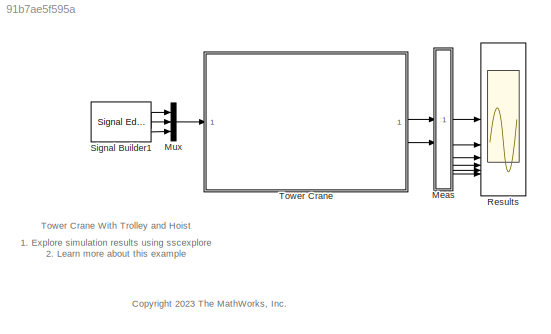
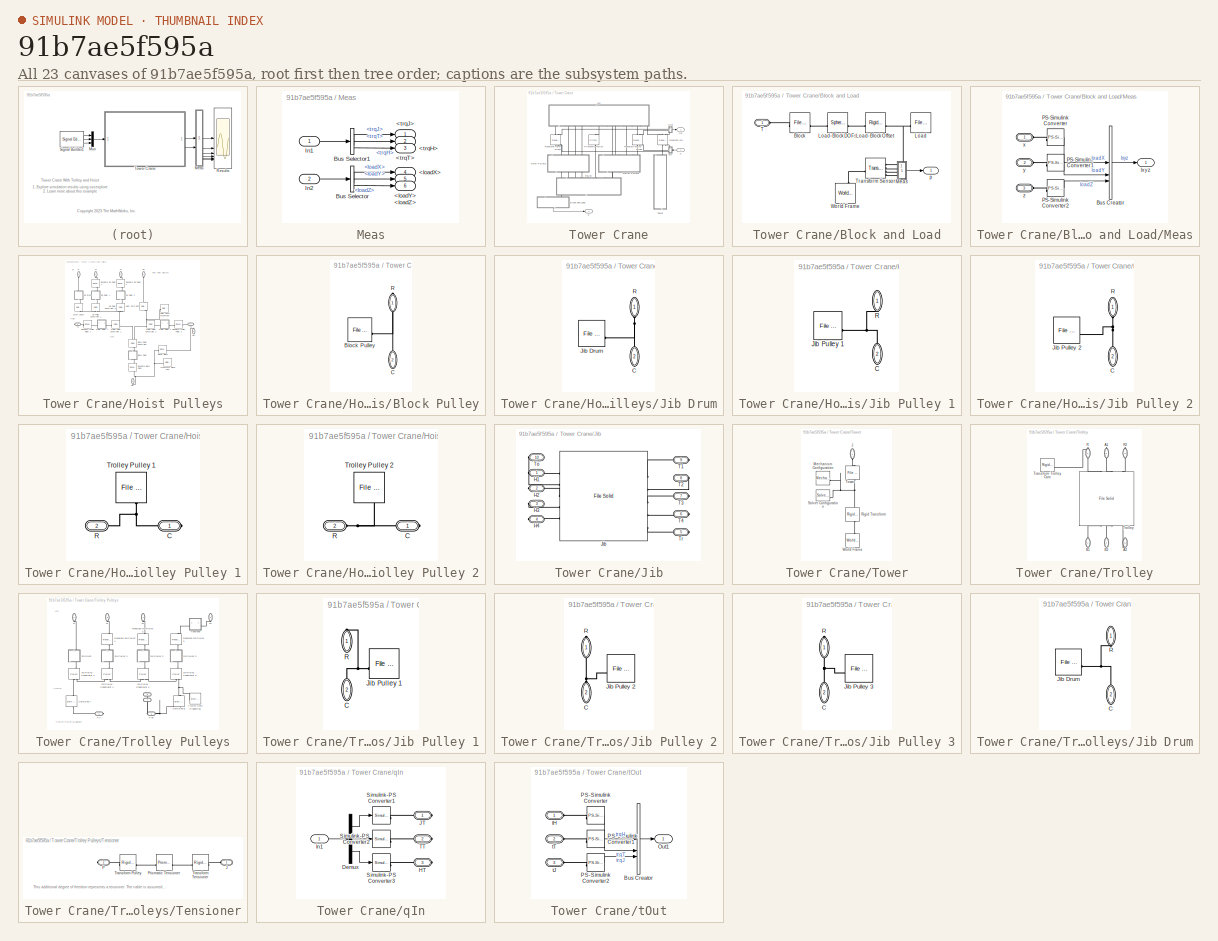
[diagram: thumbnail index - all 23 canvases of the model, root first then tree order]
MODEL slx_91b7ae5f595a
KIND model
CONFIG AbsTol = 1e-3
CONFIG EnableMultiTasking = on
CONFIG FixedStep = auto
CONFIG MaxStep = 0.01
CONFIG MinStep = auto
CONFIG PreLoadFcn = addpath(fullfile('TowerCraneSupport','Data'));\naddpath(fullfile('TowerCraneSupport','Geometries'));
CONFIG RelTol = 1e-3
CONFIG SampleTimeConstraint = Unconstrained
CONFIG SolverName = ode45
CONFIG StartTime = 0.0
CONFIG StopTime = 55
WORKSPACE source: MATLAB code (in-file)
WORKSPACE rCord = 0.25
WORKSPACE rho = 8000
WORKSPACE rContactHoist = 7
WORKSPACE rPitchHoist = rContactHoist + rCord  (= 7.25)
WORKSPACE code: Hoist.RGB = [0.35 0.35 1.0]; % Color, RGB 0-1
WORKSPACE rContactTrolley = 5
WORKSPACE rPitchTrolley = rContactTrolley + rCord  (= 5.25)
WORKSPACE code: Trolley.RGB = [1 0.15 0.15]; % Color, RGB 0-1
BLOCK [SubSystem] Meas
BLOCK [Outport] Meas/<loadX>
  Port = 4
  VectorParamsAs1DForOutWhenUnconnected = off
BLOCK [Outport] Meas/<loadY>
  Port = 5
  VectorParamsAs1DForOutWhenUnconnected = off
BLOCK [Outport] Meas/<loadZ>
  Port = 6
  VectorParamsAs1DForOutWhenUnconnected = off
BLOCK [Outport] Meas/<trqH>
  Port = 3
  VectorParamsAs1DForOutWhenUnconnected = off
BLOCK [Outport] Meas/<trqJ>
  VectorParamsAs1DForOutWhenUnconnected = off
BLOCK [Outport] Meas/<trqT>
  Port = 2
  VectorParamsAs1DForOutWhenUnconnected = off
BLOCK [BusSelector] Meas/Bus Selector
  OutputSignals = loadX,loadY,loadZ
BLOCK [BusSelector] Meas/Bus Selector1
  OutputSignals = trqJ,trqT,trqH
BLOCK [Inport] Meas/In1
BLOCK [Inport] Meas/In2
  Port = 2
BLOCK [Mux] Mux
  DisplayOption = bar
  Inputs = 3
BLOCK [Scope] Results
  Floating = off
  NumInputPorts = 6
  ScopeSpecificationString = Simulink.scopes.TimeScopeBlockCfg('CurrentConfiguration', extmgr.ConfigurationSet(extmgr.Configuration('Core','General UI',true),extmgr.Configuration('Core','Source UI',true),extmgr.Configuration('Sources','WiredSimulink',true),extmgr.Configuration('Visuals','Time Domain',true,'SerializedDisplays',{struct('MinYLimReal','-361611.29297','MaxYLimReal','411541.80378','YLabelReal','','MinYLimMag','    ...<+4942ch>
BLOCK [Reference] Signal Builder1  REF=SignalEditorBlockLib/Signal Editor
  SourceBlock = SignalEditorBlockLib/Signal Editor
  SourceType = SignalEditor
  UserDataPersistent = on
BLOCK [SubSystem] Tower Crane
  Tag = PublishSubsystem
BLOCK [SubSystem] Tower Crane/Block and Load
  NameLocation = right
BLOCK [Reference] Tower Crane/Block and Load/Block  REF=sm_lib/Body Elements/File Solid
  SourceBlock = sm_lib/Body Elements/File Solid
  SourceType = File Solid
BLOCK [Reference] Tower Crane/Block and Load/Load  REF=sm_lib/Body Elements/File Solid
  SourceBlock = sm_lib/Body Elements/File Solid
  SourceType = File Solid
BLOCK [Reference] Tower Crane/Block and Load/Load-Block DOFs  REF=sm_lib/Joints/Spherical
Joint
  SourceBlock = sm_lib/Joints/Spherical\nJoint
  SourceType = Spherical\nJoint
BLOCK [Reference] Tower Crane/Block and Load/Load-Block Offset  REF=sm_lib/Frames and
Transforms/Rigid
Transform
  SourceBlock = sm_lib/Frames and\nTransforms/Rigid\nTransform
  SourceType = Rigid\nTransform
BLOCK [SubSystem] Tower Crane/Block and Load/Meas
BLOCK [BusCreator] Tower Crane/Block and Load/Meas/Bus Creator
  DisplayOption = bar
  InheritFromInputs = on
  Inputs = 3
BLOCK [Reference] Tower Crane/Block and Load/Meas/PS-Simulink Converter  REF=nesl_utility/PS-Simulink
Converter
  SourceBlock = nesl_utility/PS-Simulink\nConverter
  SourceType = PS-Simulink\nConverter
BLOCK [Reference] Tower Crane/Block and Load/Meas/PS-Simulink Converter1  REF=nesl_utility/PS-Simulink
Converter
  SourceBlock = nesl_utility/PS-Simulink\nConverter
  SourceType = PS-Simulink\nConverter
BLOCK [Reference] Tower Crane/Block and Load/Meas/PS-Simulink Converter2  REF=nesl_utility/PS-Simulink
Converter
  SourceBlock = nesl_utility/PS-Simulink\nConverter
  SourceType = PS-Simulink\nConverter
BLOCK [Outport] Tower Crane/Block and Load/Meas/lxyz
  VectorParamsAs1DForOutWhenUnconnected = off
BLOCK [PMIOPort] Tower Crane/Block and Load/Meas/x
  Side = Left
BLOCK [PMIOPort] Tower Crane/Block and Load/Meas/y
  Port = 2
  Side = Left
BLOCK [PMIOPort] Tower Crane/Block and Load/Meas/z
  Port = 3
  Side = Left
BLOCK [PMIOPort] Tower Crane/Block and Load/T
  NameLocation = top
  Side = Left
BLOCK [Reference] Tower Crane/Block and Load/Transform Sensor  REF=sm_lib/Frames and
Transforms/Transform
Sensor
  SourceBlock = sm_lib/Frames and\nTransforms/Transform\nSensor
  SourceType = Transform\nSensor
BLOCK [Reference] Tower Crane/Block and Load/World Frame  REF=sm_lib/Frames and
Transforms/World Frame
  NameLocation = left
  SourceBlock = sm_lib/Frames and\nTransforms/World Frame
  SourceType = World Frame
BLOCK [Outport] Tower Crane/Block and Load/p
  VectorParamsAs1DForOutWhenUnconnected = off
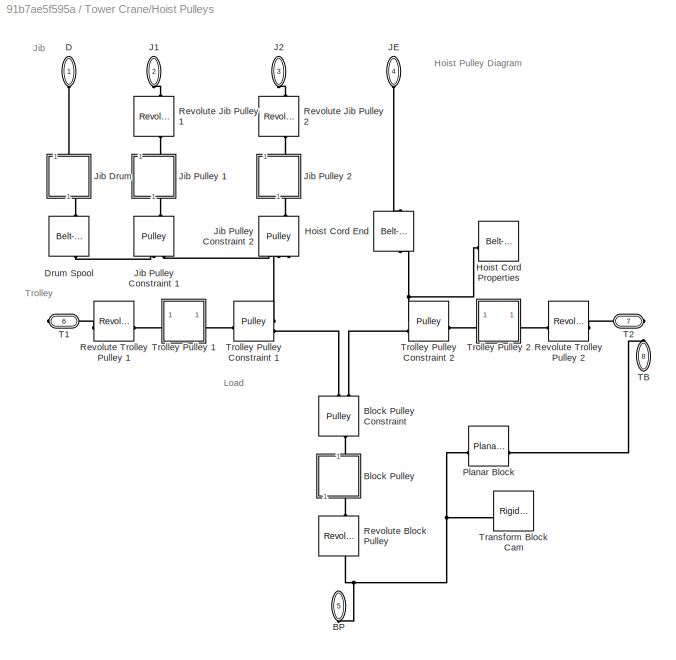
BLOCK [SubSystem] Tower Crane/Hoist Pulleys
  NameLocation = left
  Tag = PublishSubsystem
BLOCK [PMIOPort] Tower Crane/Hoist Pulleys/BP
  NameLocation = left
  Port = 5
  Side = Right
BLOCK [SubSystem] Tower Crane/Hoist Pulleys/Block Pulley
  NameLocation = left
BLOCK [Reference] Tower Crane/Hoist Pulleys/Block Pulley Constraint  REF=sm_lib/Belts and Cables/Pulley
  NameLocation = left
  SourceBlock = sm_lib/Belts and Cables/Pulley
  SourceType = Pulley
BLOCK [Reference] Tower Crane/Hoist Pulleys/Block Pulley/Block Pulley  REF=sm_lib/Body Elements/File Solid
  SourceBlock = sm_lib/Body Elements/File Solid
  SourceType = File Solid
BLOCK [PMIOPort] Tower Crane/Hoist Pulleys/Block Pulley/C
  NameLocation = right
  Port = 2
  Side = Left
BLOCK [PMIOPort] Tower Crane/Hoist Pulleys/Block Pulley/R
  NameLocation = right
  Side = Right
BLOCK [PMIOPort] Tower Crane/Hoist Pulleys/D
  NameLocation = right
  Side = Left
BLOCK [Reference] Tower Crane/Hoist Pulleys/Drum Spool  REF=sm_lib/Belts and Cables/Belt-Cable Spool
  NameLocation = right
  SourceBlock = sm_lib/Belts and Cables/Belt-Cable Spool
  SourceType = Belt-Cable Spool
BLOCK [Reference] Tower Crane/Hoist Pulleys/Hoist Cord End  REF=sm_lib/Belts and Cables/Belt-Cable End
  NameLocation = right
  SourceBlock = sm_lib/Belts and Cables/Belt-Cable End
  SourceType = Belt-Cable End
BLOCK [Reference] Tower Crane/Hoist Pulleys/Hoist Cord Properties  REF=sm_lib/Belts and Cables/Belt-Cable
Properties
  SourceBlock = sm_lib/Belts and Cables/Belt-Cable\nProperties
  SourceType = Belt-Cable\nProperties
BLOCK [PMIOPort] Tower Crane/Hoist Pulleys/J1
  NameLocation = right
  Port = 2
  Side = Left
BLOCK [PMIOPort] Tower Crane/Hoist Pulleys/J2
  NameLocation = left
  Port = 3
  Side = Left
BLOCK [PMIOPort] Tower Crane/Hoist Pulleys/JE
  NameLocation = left
  Port = 4
  Side = Left
BLOCK [SubSystem] Tower Crane/Hoist Pulleys/Jib Drum
  NameLocation = right
BLOCK [PMIOPort] Tower Crane/Hoist Pulleys/Jib Drum/C
  NameLocation = right
  Port = 2
  Side = Right
BLOCK [Reference] Tower Crane/Hoist Pulleys/Jib Drum/Jib Drum  REF=sm_lib/Body Elements/File Solid
  SourceBlock = sm_lib/Body Elements/File Solid
  SourceType = File Solid
BLOCK [PMIOPort] Tower Crane/Hoist Pulleys/Jib Drum/R
  NameLocation = right
  Side = Left
BLOCK [SubSystem] Tower Crane/Hoist Pulleys/Jib Pulley 1
  NameLocation = right
BLOCK [PMIOPort] Tower Crane/Hoist Pulleys/Jib Pulley 1/C
  NameLocation = right
  Port = 2
  Side = Right
BLOCK [Reference] Tower Crane/Hoist Pulleys/Jib Pulley 1/Jib Pulley 1  REF=sm_lib/Body Elements/File Solid
  SourceBlock = sm_lib/Body Elements/File Solid
  SourceType = File Solid
BLOCK [PMIOPort] Tower Crane/Hoist Pulleys/Jib Pulley 1/R
  NameLocation = right
  Side = Left
BLOCK [SubSystem] Tower Crane/Hoist Pulleys/Jib Pulley 2
  NameLocation = right
BLOCK [PMIOPort] Tower Crane/Hoist Pulleys/Jib Pulley 2/C
  NameLocation = right
  Port = 2
  Side = Right
BLOCK [Reference] Tower Crane/Hoist Pulleys/Jib Pulley 2/Jib Pulley 2  REF=sm_lib/Body Elements/File Solid
  SourceBlock = sm_lib/Body Elements/File Solid
  SourceType = File Solid
BLOCK [PMIOPort] Tower Crane/Hoist Pulleys/Jib Pulley 2/R
  NameLocation = right
  Side = Left
BLOCK [Reference] Tower Crane/Hoist Pulleys/Jib Pulley Constraint 1  REF=sm_lib/Belts and Cables/Pulley
  NameLocation = right
  SourceBlock = sm_lib/Belts and Cables/Pulley
  SourceType = Pulley
BLOCK [Reference] Tower Crane/Hoist Pulleys/Jib Pulley Constraint 2  REF=sm_lib/Belts and Cables/Pulley
  NameLocation = right
  SourceBlock = sm_lib/Belts and Cables/Pulley
  SourceType = Pulley
BLOCK [Reference] Tower Crane/Hoist Pulleys/Planar Block  REF=sm_lib/Joints/Planar Joint
  SourceBlock = sm_lib/Joints/Planar Joint
  SourceType = Planar Joint
BLOCK [Reference] Tower Crane/Hoist Pulleys/Revolute Block Pulley  REF=sm_lib/Joints/Revolute Joint
  NameLocation = left
  SourceBlock = sm_lib/Joints/Revolute Joint
  SourceType = Revolute Joint
BLOCK [Reference] Tower Crane/Hoist Pulleys/Revolute Jib Pulley 1  REF=sm_lib/Joints/Revolute Joint
  NameLocation = right
  SourceBlock = sm_lib/Joints/Revolute Joint
  SourceType = Revolute Joint
BLOCK [Reference] Tower Crane/Hoist Pulleys/Revolute Jib Pulley 2  REF=sm_lib/Joints/Revolute Joint
  NameLocation = right
  SourceBlock = sm_lib/Joints/Revolute Joint
  SourceType = Revolute Joint
BLOCK [Reference] Tower Crane/Hoist Pulleys/Revolute Trolley Pulley 1  REF=sm_lib/Joints/Revolute Joint
  SourceBlock = sm_lib/Joints/Revolute Joint
  SourceType = Revolute Joint
BLOCK [Reference] Tower Crane/Hoist Pulleys/Revolute Trolley Pulley 2  REF=sm_lib/Joints/Revolute Joint
  SourceBlock = sm_lib/Joints/Revolute Joint
  SourceType = Revolute Joint
BLOCK [PMIOPort] Tower Crane/Hoist Pulleys/T1
  Port = 6
  Side = Right
BLOCK [PMIOPort] Tower Crane/Hoist Pulleys/T2
  Port = 7
  Side = Right
BLOCK [PMIOPort] Tower Crane/Hoist Pulleys/TB
  NameLocation = left
  Port = 8
  Side = Right
BLOCK [Reference] Tower Crane/Hoist Pulleys/Transform Block Cam  REF=sm_lib/Frames and
Transforms/Rigid
Transform
  SourceBlock = sm_lib/Frames and\nTransforms/Rigid\nTransform
  SourceType = Rigid\nTransform
BLOCK [SubSystem] Tower Crane/Hoist Pulleys/Trolley Pulley 1
BLOCK [PMIOPort] Tower Crane/Hoist Pulleys/Trolley Pulley 1/C
  Side = Right
BLOCK [PMIOPort] Tower Crane/Hoist Pulleys/Trolley Pulley 1/R
  Port = 2
  Side = Left
BLOCK [Reference] Tower Crane/Hoist Pulleys/Trolley Pulley 1/Trolley Pulley 1  REF=sm_lib/Body Elements/File Solid
  NameLocation = left
  SourceBlock = sm_lib/Body Elements/File Solid
  SourceType = File Solid
BLOCK [SubSystem] Tower Crane/Hoist Pulleys/Trolley Pulley 2
BLOCK [PMIOPort] Tower Crane/Hoist Pulleys/Trolley Pulley 2/C
  Side = Right
BLOCK [PMIOPort] Tower Crane/Hoist Pulleys/Trolley Pulley 2/R
  Port = 2
  Side = Left
BLOCK [Reference] Tower Crane/Hoist Pulleys/Trolley Pulley 2/Trolley Pulley 2  REF=sm_lib/Body Elements/File Solid
  NameLocation = left
  SourceBlock = sm_lib/Body Elements/File Solid
  SourceType = File Solid
BLOCK [Reference] Tower Crane/Hoist Pulleys/Trolley Pulley Constraint 1  REF=sm_lib/Belts and Cables/Pulley
  SourceBlock = sm_lib/Belts and Cables/Pulley
  SourceType = Pulley
BLOCK [Reference] Tower Crane/Hoist Pulleys/Trolley Pulley Constraint 2  REF=sm_lib/Belts and Cables/Pulley
  SourceBlock = sm_lib/Belts and Cables/Pulley
  SourceType = Pulley
BLOCK [SubSystem] Tower Crane/Jib
  NameLocation = right
BLOCK [PMIOPort] Tower Crane/Jib/H1
  Side = Right
BLOCK [PMIOPort] Tower Crane/Jib/H2
  Port = 2
  Side = Right
BLOCK [PMIOPort] Tower Crane/Jib/H3
  Port = 3
  Side = Right
BLOCK [PMIOPort] Tower Crane/Jib/H4
  Port = 4
  Side = Right
BLOCK [Reference] Tower Crane/Jib/Jib  REF=sm_lib/Body Elements/File Solid
  SourceBlock = sm_lib/Body Elements/File Solid
  SourceType = File Solid
BLOCK [PMIOPort] Tower Crane/Jib/T1
  Port = 9
  Side = Right
BLOCK [PMIOPort] Tower Crane/Jib/T2
  Port = 8
  Side = Right
BLOCK [PMIOPort] Tower Crane/Jib/T3
  Port = 7
  Side = Right
BLOCK [PMIOPort] Tower Crane/Jib/T4
  Port = 6
  Side = Right
BLOCK [PMIOPort] Tower Crane/Jib/To
  Port = 10
  Side = Right
BLOCK [PMIOPort] Tower Crane/Jib/Tr
  Port = 5
  Side = Right
BLOCK [Reference] Tower Crane/Prismatic Trolley  REF=sm_lib/Joints/Prismatic
Joint
  NameLocation = right
  SourceBlock = sm_lib/Joints/Prismatic\nJoint
  SourceType = Prismatic\nJoint
BLOCK [Reference] Tower Crane/Revolute Hoist Drum  REF=sm_lib/Joints/Revolute Joint
  NameLocation = left
  SourceBlock = sm_lib/Joints/Revolute Joint
  SourceType = Revolute Joint
BLOCK [Reference] Tower Crane/Revolute Jib  REF=sm_lib/Joints/Revolute Joint
  NameLocation = right
  SourceBlock = sm_lib/Joints/Revolute Joint
  SourceType = Revolute Joint
BLOCK [Reference] Tower Crane/Revolute Trolley Drum  REF=sm_lib/Joints/Revolute Joint
  NameLocation = right
  SourceBlock = sm_lib/Joints/Revolute Joint
  SourceType = Revolute Joint
BLOCK [SubSystem] Tower Crane/Tower
  NameLocation = left
BLOCK [PMIOPort] Tower Crane/Tower/J
  NameLocation = left
  Side = Left
BLOCK [Reference] Tower Crane/Tower/Mechanism Configuration  REF=sm_lib/Utilities/Mechanism
Configuration
  NameLocation = top
  SourceBlock = sm_lib/Utilities/Mechanism\nConfiguration
  SourceType = Mechanism\nConfiguration
BLOCK [Reference] Tower Crane/Tower/Rigid Transform  REF=sm_lib/Frames and
Transforms/Rigid
Transform
  NameLocation = right
  SourceBlock = sm_lib/Frames and\nTransforms/Rigid\nTransform
  SourceType = Rigid\nTransform
BLOCK [Reference] Tower Crane/Tower/Solver Configuration  REF=nesl_utility/Solver
Configuration
  SourceBlock = nesl_utility/Solver\nConfiguration
  SourceType = Solver\nConfiguration
BLOCK [Reference] Tower Crane/Tower/Tower  REF=sm_lib/Body Elements/File Solid
  NameLocation = right
  SourceBlock = sm_lib/Body Elements/File Solid
  SourceType = File Solid
BLOCK [Reference] Tower Crane/Tower/World Frame  REF=sm_lib/Frames and
Transforms/World Frame
  NameLocation = right
  SourceBlock = sm_lib/Frames and\nTransforms/World Frame
  SourceType = World Frame
BLOCK [SubSystem] Tower Crane/Trolley
  NameLocation = right
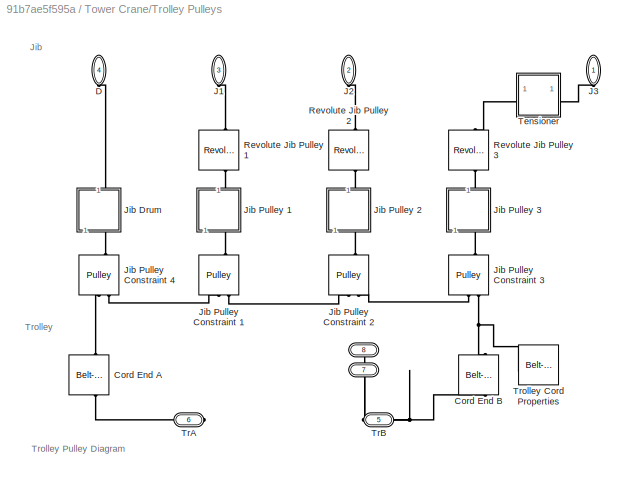
BLOCK [SubSystem] Tower Crane/Trolley Pulleys
  NameLocation = right
  Tag = PublishSubsystem
BLOCK [PMIOPort] Tower Crane/Trolley Pulleys/  
  NameLocation = top
  Port = 7
  Side = Right
BLOCK [PMIOPort] Tower Crane/Trolley Pulleys/    
  NameLocation = top
  Port = 8
  Side = Right
BLOCK [Reference] Tower Crane/Trolley Pulleys/Cord End A  REF=sm_lib/Belts and Cables/Belt-Cable End
  NameLocation = right
  SourceBlock = sm_lib/Belts and Cables/Belt-Cable End
  SourceType = Belt-Cable End
BLOCK [Reference] Tower Crane/Trolley Pulleys/Cord End B  REF=sm_lib/Belts and Cables/Belt-Cable End
  NameLocation = left
  SourceBlock = sm_lib/Belts and Cables/Belt-Cable End
  SourceType = Belt-Cable End
BLOCK [PMIOPort] Tower Crane/Trolley Pulleys/D
  NameLocation = left
  Port = 4
  Side = Left
BLOCK [PMIOPort] Tower Crane/Trolley Pulleys/J1
  NameLocation = left
  Port = 3
  Side = Left
BLOCK [PMIOPort] Tower Crane/Trolley Pulleys/J2
  NameLocation = left
  Port = 2
  Side = Left
BLOCK [PMIOPort] Tower Crane/Trolley Pulleys/J3
  NameLocation = left
  Side = Left
BLOCK [SubSystem] Tower Crane/Trolley Pulleys/Jib Drum
  NameLocation = right
BLOCK [PMIOPort] Tower Crane/Trolley Pulleys/Jib Drum/C
  NameLocation = left
  Port = 2
  Side = Right
BLOCK [Reference] Tower Crane/Trolley Pulleys/Jib Drum/Jib Drum  REF=sm_lib/Body Elements/File Solid
  SourceBlock = sm_lib/Body Elements/File Solid
  SourceType = File Solid
BLOCK [PMIOPort] Tower Crane/Trolley Pulleys/Jib Drum/R
  NameLocation = left
  Side = Left
BLOCK [SubSystem] Tower Crane/Trolley Pulleys/Jib Pulley 1
  NameLocation = right
BLOCK [PMIOPort] Tower Crane/Trolley Pulleys/Jib Pulley 1/C
  NameLocation = left
  Port = 2
  Side = Left
BLOCK [Reference] Tower Crane/Trolley Pulleys/Jib Pulley 1/Jib Pulley 1  REF=sm_lib/Body Elements/File Solid
  SourceBlock = sm_lib/Body Elements/File Solid
  SourceType = File Solid
BLOCK [PMIOPort] Tower Crane/Trolley Pulleys/Jib Pulley 1/R
  NameLocation = left
  Side = Right
BLOCK [SubSystem] Tower Crane/Trolley Pulleys/Jib Pulley 2
  NameLocation = right
BLOCK [PMIOPort] Tower Crane/Trolley Pulleys/Jib Pulley 2/C
  NameLocation = left
  Port = 2
  Side = Left
BLOCK [Reference] Tower Crane/Trolley Pulleys/Jib Pulley 2/Jib Pulley 2  REF=sm_lib/Body Elements/File Solid
  SourceBlock = sm_lib/Body Elements/File Solid
  SourceType = File Solid
BLOCK [PMIOPort] Tower Crane/Trolley Pulleys/Jib Pulley 2/R
  NameLocation = left
  Side = Right
BLOCK [SubSystem] Tower Crane/Trolley Pulleys/Jib Pulley 3
  NameLocation = right
BLOCK [PMIOPort] Tower Crane/Trolley Pulleys/Jib Pulley 3/C
  NameLocation = left
  Port = 2
  Side = Left
BLOCK [Reference] Tower Crane/Trolley Pulleys/Jib Pulley 3/Jib Pulley 3  REF=sm_lib/Body Elements/File Solid
  SourceBlock = sm_lib/Body Elements/File Solid
  SourceType = File Solid
BLOCK [PMIOPort] Tower Crane/Trolley Pulleys/Jib Pulley 3/R
  NameLocation = left
  Side = Right
BLOCK [Reference] Tower Crane/Trolley Pulleys/Jib Pulley Constraint 1  REF=sm_lib/Belts and Cables/Pulley
  NameLocation = right
  SourceBlock = sm_lib/Belts and Cables/Pulley
  SourceType = Pulley
BLOCK [Reference] Tower Crane/Trolley Pulleys/Jib Pulley Constraint 2  REF=sm_lib/Belts and Cables/Pulley
  NameLocation = right
  SourceBlock = sm_lib/Belts and Cables/Pulley
  SourceType = Pulley
BLOCK [Reference] Tower Crane/Trolley Pulleys/Jib Pulley Constraint 3  REF=sm_lib/Belts and Cables/Pulley
  NameLocation = right
  SourceBlock = sm_lib/Belts and Cables/Pulley
  SourceType = Pulley
BLOCK [Reference] Tower Crane/Trolley Pulleys/Jib Pulley Constraint 4  REF=sm_lib/Belts and Cables/Pulley
  NameLocation = right
  SourceBlock = sm_lib/Belts and Cables/Pulley
  SourceType = Pulley
BLOCK [Reference] Tower Crane/Trolley Pulleys/Revolute Jib Pulley 1  REF=sm_lib/Joints/Revolute Joint
  NameLocation = right
  SourceBlock = sm_lib/Joints/Revolute Joint
  SourceType = Revolute Joint
BLOCK [Reference] Tower Crane/Trolley Pulleys/Revolute Jib Pulley 2  REF=sm_lib/Joints/Revolute Joint
  NameLocation = right
  SourceBlock = sm_lib/Joints/Revolute Joint
  SourceType = Revolute Joint
BLOCK [Reference] Tower Crane/Trolley Pulleys/Revolute Jib Pulley 3  REF=sm_lib/Joints/Revolute Joint
  NameLocation = right
  SourceBlock = sm_lib/Joints/Revolute Joint
  SourceType = Revolute Joint
BLOCK [SubSystem] Tower Crane/Trolley Pulleys/Tensioner
BLOCK [PMIOPort] Tower Crane/Trolley Pulleys/Tensioner/J
  Side = Left
BLOCK [PMIOPort] Tower Crane/Trolley Pulleys/Tensioner/P
  Port = 2
  Side = Right
BLOCK [Reference] Tower Crane/Trolley Pulleys/Tensioner/Prismatic Tensioner  REF=sm_lib/Joints/Prismatic
Joint
  SourceBlock = sm_lib/Joints/Prismatic\nJoint
  SourceType = Prismatic\nJoint
BLOCK [Reference] Tower Crane/Trolley Pulleys/Tensioner/Transform Pulley  REF=sm_lib/Frames and
Transforms/Rigid
Transform
  SourceBlock = sm_lib/Frames and\nTransforms/Rigid\nTransform
  SourceType = Rigid\nTransform
BLOCK [Reference] Tower Crane/Trolley Pulleys/Tensioner/Transform Tensioner  REF=sm_lib/Frames and
Transforms/Rigid
Transform
  SourceBlock = sm_lib/Frames and\nTransforms/Rigid\nTransform
  SourceType = Rigid\nTransform
BLOCK [PMIOPort] Tower Crane/Trolley Pulleys/TrA
  NameLocation = top
  Port = 6
  Side = Right
BLOCK [PMIOPort] Tower Crane/Trolley Pulleys/TrB
  NameLocation = top
  Port = 5
  Side = Right
BLOCK [Reference] Tower Crane/Trolley Pulleys/Trolley Cord Properties  REF=sm_lib/Belts and Cables/Belt-Cable
Properties
  SourceBlock = sm_lib/Belts and Cables/Belt-Cable\nProperties
  SourceType = Belt-Cable\nProperties
BLOCK [PMIOPort] Tower Crane/Trolley/A1
  NameLocation = right
  Port = 5
  Side = Right
BLOCK [PMIOPort] Tower Crane/Trolley/A2
  NameLocation = right
  Port = 6
  Side = Right
BLOCK [PMIOPort] Tower Crane/Trolley/B1
  NameLocation = right
  Side = Right
BLOCK [PMIOPort] Tower Crane/Trolley/B2
  NameLocation = right
  Port = 2
  Side = Right
BLOCK [PMIOPort] Tower Crane/Trolley/R
  NameLocation = right
  Port = 4
  Side = Right
BLOCK [PMIOPort] Tower Crane/Trolley/R2
  NameLocation = right
  Port = 3
  Side = Right
BLOCK [Reference] Tower Crane/Trolley/Transform Trolley Cam  REF=sm_lib/Frames and
Transforms/Rigid
Transform
  SourceBlock = sm_lib/Frames and\nTransforms/Rigid\nTransform
  SourceType = Rigid\nTransform
BLOCK [Reference] Tower Crane/Trolley/Trolley   REF=sm_lib/Body Elements/File Solid
  NameLocation = right
  SourceBlock = sm_lib/Body Elements/File Solid
  SourceType = File Solid
BLOCK [Outport] Tower Crane/p
  Port = 2
  VectorParamsAs1DForOutWhenUnconnected = off
BLOCK [Inport] Tower Crane/q
BLOCK [SubSystem] Tower Crane/qIn
BLOCK [Demux] Tower Crane/qIn/Demux
  Outputs = 3
BLOCK [PMIOPort] Tower Crane/qIn/HT
  Port = 3
  Side = Right
BLOCK [Inport] Tower Crane/qIn/In1
BLOCK [PMIOPort] Tower Crane/qIn/JT
  Side = Right
BLOCK [Reference] Tower Crane/qIn/Simulink-PS Converter1  REF=nesl_utility/Simulink-PS
Converter
  SourceBlock = nesl_utility/Simulink-PS\nConverter
  SourceType = Simulink-PS\nConverter
BLOCK [Reference] Tower Crane/qIn/Simulink-PS Converter2  REF=nesl_utility/Simulink-PS
Converter
  SourceBlock = nesl_utility/Simulink-PS\nConverter
  SourceType = Simulink-PS\nConverter
BLOCK [Reference] Tower Crane/qIn/Simulink-PS Converter3  REF=nesl_utility/Simulink-PS
Converter
  SourceBlock = nesl_utility/Simulink-PS\nConverter
  SourceType = Simulink-PS\nConverter
BLOCK [PMIOPort] Tower Crane/qIn/TT
  Port = 2
  Side = Right
BLOCK [SubSystem] Tower Crane/tOut
BLOCK [BusCreator] Tower Crane/tOut/Bus Creator
  DisplayOption = bar
  InheritFromInputs = on
  Inputs = 3
BLOCK [Outport] Tower Crane/tOut/Out1
  VectorParamsAs1DForOutWhenUnconnected = off
BLOCK [Reference] Tower Crane/tOut/PS-Simulink Converter  REF=nesl_utility/PS-Simulink
Converter
  SourceBlock = nesl_utility/PS-Simulink\nConverter
  SourceType = PS-Simulink\nConverter
BLOCK [Reference] Tower Crane/tOut/PS-Simulink Converter1  REF=nesl_utility/PS-Simulink
Converter
  SourceBlock = nesl_utility/PS-Simulink\nConverter
  SourceType = PS-Simulink\nConverter
BLOCK [Reference] Tower Crane/tOut/PS-Simulink Converter2  REF=nesl_utility/PS-Simulink
Converter
  SourceBlock = nesl_utility/PS-Simulink\nConverter
  SourceType = PS-Simulink\nConverter
BLOCK [PMIOPort] Tower Crane/tOut/tH
  Side = Left
BLOCK [PMIOPort] Tower Crane/tOut/tJ
  Port = 3
  Side = Left
BLOCK [PMIOPort] Tower Crane/tOut/tT
  Port = 2
  Side = Left
BLOCK [Outport] Tower Crane/trq
  VectorParamsAs1DForOutWhenUnconnected = off
ANNOTATION (root): 1. Explore simulation results using sscexplore 2. Learn more about this example
ANNOTATION (root): <copyright redacted>
ANNOTATION (root): Tower Crane With Trolley and Hoist
ANNOTATION Tower Crane/Hoist Pulleys: Hoist Pulley Diagram
ANNOTATION Tower Crane/Hoist Pulleys: Jib
ANNOTATION Tower Crane/Hoist Pulleys: Load
ANNOTATION Tower Crane/Hoist Pulleys: Trolley
ANNOTATION Tower Crane/Trolley Pulleys: Trolley Pulley Diagram
ANNOTATION Tower Crane/Trolley Pulleys: Jib
ANNOTATION Tower Crane/Trolley Pulleys: Trolley
ANNOTATION Tower Crane/Trolley Pulleys/Tensioner: This additional degree of freedom represents a tensioner. The cable is assumed to not change length, so one of the pulley attachments must move slightly as the trolley travels along the length of the jib.
LINE Meas/Bus Selector1:1 -> Meas/<trqJ>:1
LINE Meas/Bus Selector1:2 -> Meas/<trqT>:1
LINE Meas/Bus Selector1:3 -> Meas/<trqH>:1
LINE Meas/Bus Selector:1 -> Meas/<loadX>:1
LINE Meas/Bus Selector:2 -> Meas/<loadY>:1
LINE Meas/Bus Selector:3 -> Meas/<loadZ>:1
LINE Meas/In1:1 -> Meas/Bus Selector1:1
LINE Meas/In2:1 -> Meas/Bus Selector:1
LINE Meas:1 -> Results:1
LINE Meas:2 -> Results:2
LINE Meas:3 -> Results:3
LINE Meas:4 -> Results:4
LINE Meas:5 -> Results:5
LINE Meas:6 -> Results:6
LINE Mux:1 -> Tower Crane:1
LINE Signal Builder1:1 -> Mux:1
LINE Signal Builder1:2 -> Mux:2
LINE Signal Builder1:3 -> Mux:3
LINE Tower Crane/Block and Load/Meas/Bus Creator:1 -> Tower Crane/Block and Load/Meas/lxyz:1
LINE Tower Crane/Block and Load/Meas/PS-Simulink Converter1:1 -> Tower Crane/Block and Load/Meas/Bus Creator:2
LINE Tower Crane/Block and Load/Meas/PS-Simulink Converter2:1 -> Tower Crane/Block and Load/Meas/Bus Creator:3
LINE Tower Crane/Block and Load/Meas/PS-Simulink Converter:1 -> Tower Crane/Block and Load/Meas/Bus Creator:1
LINE Tower Crane/Block and Load/Meas:1 -> Tower Crane/Block and Load/p:1
LINE Tower Crane/Block and Load:1 -> Tower Crane/p:1
LINE Tower Crane/q:1 -> Tower Crane/qIn:1
LINE Tower Crane/qIn/Demux:1 -> Tower Crane/qIn/Simulink-PS Converter1:1
LINE Tower Crane/qIn/Demux:2 -> Tower Crane/qIn/Simulink-PS Converter2:1
LINE Tower Crane/qIn/Demux:3 -> Tower Crane/qIn/Simulink-PS Converter3:1
LINE Tower Crane/qIn/In1:1 -> Tower Crane/qIn/Demux:1
LINE Tower Crane/tOut/Bus Creator:1 -> Tower Crane/tOut/Out1:1
LINE Tower Crane/tOut/PS-Simulink Converter1:1 -> Tower Crane/tOut/Bus Creator:2
LINE Tower Crane/tOut/PS-Simulink Converter2:1 -> Tower Crane/tOut/Bus Creator:3
LINE Tower Crane/tOut/PS-Simulink Converter:1 -> Tower Crane/tOut/Bus Creator:1
LINE Tower Crane/tOut:1 -> Tower Crane/trq:1
LINE Tower Crane:1 -> Meas:1
LINE Tower Crane:2 -> Meas:2
PLINE Tower Crane/Block and Load/Block:LConn1 -- Tower Crane/Block and Load/T:RConn1
PLINE Tower Crane/Block and Load/Block:RConn1 -- Tower Crane/Block and Load/Load-Block DOFs:LConn1
PLINE Tower Crane/Block and Load/Load-Block DOFs:RConn1 -- Tower Crane/Block and Load/Load-Block Offset:LConn1
PNET net1: Tower Crane/Block and Load/Load-Block Offset:RConn1 -- Tower Crane/Block and Load/Load:LConn1 -- Tower Crane/Block and Load/Transform Sensor:RConn1
PLINE Tower Crane/Block and Load/Meas/PS-Simulink Converter1:LConn1 -- Tower Crane/Block and Load/Meas/y:RConn1
PLINE Tower Crane/Block and Load/Meas/PS-Simulink Converter2:LConn1 -- Tower Crane/Block and Load/Meas/z:RConn1
PLINE Tower Crane/Block and Load/Meas/PS-Simulink Converter:LConn1 -- Tower Crane/Block and Load/Meas/x:RConn1
PLINE Tower Crane/Block and Load/Meas:LConn1 -- Tower Crane/Block and Load/Transform Sensor:RConn2
PLINE Tower Crane/Block and Load/Meas:LConn2 -- Tower Crane/Block and Load/Transform Sensor:RConn3
PLINE Tower Crane/Block and Load/Meas:LConn3 -- Tower Crane/Block and Load/Transform Sensor:RConn4
PLINE Tower Crane/Block and Load/Transform Sensor:LConn1 -- Tower Crane/Block and Load/World Frame:RConn1
PLINE Tower Crane/Block and Load:LConn1 -- Tower Crane/Hoist Pulleys:RConn1
PNET net2: Tower Crane/Hoist Pulleys/BP:RConn1 -- Tower Crane/Hoist Pulleys/Planar Block:RConn1 -- Tower Crane/Hoist Pulleys/Revolute Block Pulley:RConn1 -- Tower Crane/Hoist Pulleys/Transform Block Cam:LConn1
PLINE Tower Crane/Hoist Pulleys/Block Pulley Constraint:LConn1 -- Tower Crane/Hoist Pulleys/Block Pulley:RConn1
PLINE Tower Crane/Hoist Pulleys/Block Pulley Constraint:RConn1 -- Tower Crane/Hoist Pulleys/Trolley Pulley Constraint 1:RConn2
PLINE Tower Crane/Hoist Pulleys/Block Pulley Constraint:RConn2 -- Tower Crane/Hoist Pulleys/Trolley Pulley Constraint 2:RConn2
PNET net3: Tower Crane/Hoist Pulleys/Block Pulley/Block Pulley:RConn1 -- Tower Crane/Hoist Pulleys/Block Pulley/C:RConn1 -- Tower Crane/Hoist Pulleys/Block Pulley/R:RConn1
PLINE Tower Crane/Hoist Pulleys/Block Pulley:LConn1 -- Tower Crane/Hoist Pulleys/Revolute Block Pulley:LConn1
PLINE Tower Crane/Hoist Pulleys/D:RConn1 -- Tower Crane/Hoist Pulleys/Jib Drum:LConn1
PLINE Tower Crane/Hoist Pulleys/Drum Spool:LConn1 -- Tower Crane/Hoist Pulleys/Jib Drum:RConn1
PLINE Tower Crane/Hoist Pulleys/Drum Spool:RConn1 -- Tower Crane/Hoist Pulleys/Jib Pulley Constraint 1:RConn1
PLINE Tower Crane/Hoist Pulleys/Hoist Cord End:LConn1 -- Tower Crane/Hoist Pulleys/JE:RConn1
PNET net4: Tower Crane/Hoist Pulleys/Hoist Cord End:RConn1 -- Tower Crane/Hoist Pulleys/Hoist Cord Properties:LConn1 -- Tower Crane/Hoist Pulleys/Trolley Pulley Constraint 2:RConn1
PLINE Tower Crane/Hoist Pulleys/J1:RConn1 -- Tower Crane/Hoist Pulleys/Revolute Jib Pulley 1:LConn1
PLINE Tower Crane/Hoist Pulleys/J2:RConn1 -- Tower Crane/Hoist Pulleys/Revolute Jib Pulley 2:LConn1
PNET net5: Tower Crane/Hoist Pulleys/Jib Drum/C:RConn1 -- Tower Crane/Hoist Pulleys/Jib Drum/Jib Drum:LConn1 -- Tower Crane/Hoist Pulleys/Jib Drum/R:RConn1
PNET net6: Tower Crane/Hoist Pulleys/Jib Pulley 1/C:RConn1 -- Tower Crane/Hoist Pulleys/Jib Pulley 1/Jib Pulley 1:RConn1 -- Tower Crane/Hoist Pulleys/Jib Pulley 1/R:RConn1
PLINE Tower Crane/Hoist Pulleys/Jib Pulley 1:LConn1 -- Tower Crane/Hoist Pulleys/Revolute Jib Pulley 1:RConn1
PLINE Tower Crane/Hoist Pulleys/Jib Pulley 1:RConn1 -- Tower Crane/Hoist Pulleys/Jib Pulley Constraint 1:LConn1
PNET net7: Tower Crane/Hoist Pulleys/Jib Pulley 2/C:RConn1 -- Tower Crane/Hoist Pulleys/Jib Pulley 2/Jib Pulley 2:RConn1 -- Tower Crane/Hoist Pulleys/Jib Pulley 2/R:RConn1
PLINE Tower Crane/Hoist Pulleys/Jib Pulley 2:LConn1 -- Tower Crane/Hoist Pulleys/Revolute Jib Pulley 2:RConn1
PLINE Tower Crane/Hoist Pulleys/Jib Pulley 2:RConn1 -- Tower Crane/Hoist Pulleys/Jib Pulley Constraint 2:LConn1
PLINE Tower Crane/Hoist Pulleys/Jib Pulley Constraint 1:RConn2 -- Tower Crane/Hoist Pulleys/Jib Pulley Constraint 2:RConn1
PLINE Tower Crane/Hoist Pulleys/Jib Pulley Constraint 2:RConn2 -- Tower Crane/Hoist Pulleys/Trolley Pulley Constraint 1:RConn1
PLINE Tower Crane/Hoist Pulleys/Planar Block:LConn1 -- Tower Crane/Hoist Pulleys/TB:RConn1
PLINE Tower Crane/Hoist Pulleys/Revolute Trolley Pulley 1:LConn1 -- Tower Crane/Hoist Pulleys/T1:RConn1
PLINE Tower Crane/Hoist Pulleys/Revolute Trolley Pulley 1:RConn1 -- Tower Crane/Hoist Pulleys/Trolley Pulley 1:LConn1
PLINE Tower Crane/Hoist Pulleys/Revolute Trolley Pulley 2:LConn1 -- Tower Crane/Hoist Pulleys/T2:RConn1
PLINE Tower Crane/Hoist Pulleys/Revolute Trolley Pulley 2:RConn1 -- Tower Crane/Hoist Pulleys/Trolley Pulley 2:RConn1
PNET net8: Tower Crane/Hoist Pulleys/Trolley Pulley 1/C:RConn1 -- Tower Crane/Hoist Pulleys/Trolley Pulley 1/R:RConn1 -- Tower Crane/Hoist Pulleys/Trolley Pulley 1/Trolley Pulley 1:RConn1
PLINE Tower Crane/Hoist Pulleys/Trolley Pulley 1:RConn1 -- Tower Crane/Hoist Pulleys/Trolley Pulley Constraint 1:LConn1
PNET net9: Tower Crane/Hoist Pulleys/Trolley Pulley 2/C:RConn1 -- Tower Crane/Hoist Pulleys/Trolley Pulley 2/R:RConn1 -- Tower Crane/Hoist Pulleys/Trolley Pulley 2/Trolley Pulley 2:RConn1
PLINE Tower Crane/Hoist Pulleys/Trolley Pulley 2:LConn1 -- Tower Crane/Hoist Pulleys/Trolley Pulley Constraint 2:LConn1
PLINE Tower Crane/Hoist Pulleys:LConn1 -- Tower Crane/Revolute Hoist Drum:LConn1
PLINE Tower Crane/Hoist Pulleys:LConn2 -- Tower Crane/Jib:RConn2
PLINE Tower Crane/Hoist Pulleys:LConn3 -- Tower Crane/Jib:RConn3
PLINE Tower Crane/Hoist Pulleys:LConn4 -- Tower Crane/Jib:RConn4
PLINE Tower Crane/Hoist Pulleys:RConn2 -- Tower Crane/Trolley:RConn1
PLINE Tower Crane/Hoist Pulleys:RConn3 -- Tower Crane/Trolley:RConn2
PLINE Tower Crane/Hoist Pulleys:RConn4 -- Tower Crane/Trolley:RConn3
PLINE Tower Crane/Jib/H1:RConn1 -- Tower Crane/Jib/Jib:LConn2
PLINE Tower Crane/Jib/H2:RConn1 -- Tower Crane/Jib/Jib:LConn3
PLINE Tower Crane/Jib/H3:RConn1 -- Tower Crane/Jib/Jib:LConn4
PLINE Tower Crane/Jib/H4:RConn1 -- Tower Crane/Jib/Jib:LConn5
PLINE Tower Crane/Jib/Jib:LConn1 -- Tower Crane/Jib/To:RConn1
PLINE Tower Crane/Jib/Jib:RConn1 -- Tower Crane/Jib/T1:RConn1
PLINE Tower Crane/Jib/Jib:RConn2 -- Tower Crane/Jib/T2:RConn1
PLINE Tower Crane/Jib/Jib:RConn3 -- Tower Crane/Jib/T3:RConn1
PLINE Tower Crane/Jib/Jib:RConn4 -- Tower Crane/Jib/T4:RConn1
PLINE Tower Crane/Jib/Jib:RConn5 -- Tower Crane/Jib/Tr:RConn1
PLINE Tower Crane/Jib:RConn1 -- Tower Crane/Revolute Hoist Drum:RConn1
PLINE Tower Crane/Jib:RConn10 -- Tower Crane/Revolute Jib:RConn1
PLINE Tower Crane/Jib:RConn5 -- Tower Crane/Prismatic Trolley:LConn1
PLINE Tower Crane/Jib:RConn6 -- Tower Crane/Trolley Pulleys:LConn1
PLINE Tower Crane/Jib:RConn7 -- Tower Crane/Trolley Pulleys:LConn2
PLINE Tower Crane/Jib:RConn8 -- Tower Crane/Trolley Pulleys:LConn3
PLINE Tower Crane/Jib:RConn9 -- Tower Crane/Revolute Trolley Drum:RConn1
PLINE Tower Crane/Prismatic Trolley:RConn1 -- Tower Crane/Trolley:RConn4
PLINE Tower Crane/Revolute Hoist Drum:LConn2 -- Tower Crane/qIn:RConn3
PLINE Tower Crane/Revolute Hoist Drum:RConn2 -- Tower Crane/tOut:LConn1
PLINE Tower Crane/Revolute Jib:LConn1 -- Tower Crane/Tower:LConn1
PLINE Tower Crane/Revolute Jib:LConn2 -- Tower Crane/qIn:RConn1
PLINE Tower Crane/Revolute Jib:RConn2 -- Tower Crane/tOut:LConn3
PLINE Tower Crane/Revolute Trolley Drum:LConn1 -- Tower Crane/Trolley Pulleys:LConn4
PLINE Tower Crane/Revolute Trolley Drum:LConn2 -- Tower Crane/qIn:RConn2
PLINE Tower Crane/Revolute Trolley Drum:RConn2 -- Tower Crane/tOut:LConn2
PLINE Tower Crane/Tower/J:RConn1 -- Tower Crane/Tower/Tower:LConn1
PNET net10: Tower Crane/Tower/Mechanism Configuration:RConn1 -- Tower Crane/Tower/Rigid Transform:RConn1 -- Tower Crane/Tower/Solver Configuration:RConn1 -- Tower Crane/Tower/Tower:RConn1
PLINE Tower Crane/Tower/Rigid Transform:LConn1 -- Tower Crane/Tower/World Frame:RConn1
PNET net11: Tower Crane/Trolley Pulleys/    :RConn1 -- Tower Crane/Trolley Pulleys/  :RConn1 -- Tower Crane/Trolley Pulleys/Cord End B:LConn1 -- Tower Crane/Trolley Pulleys/TrB:RConn1
PLINE Tower Crane/Trolley Pulleys/Cord End A:LConn1 -- Tower Crane/Trolley Pulleys/TrA:RConn1
PLINE Tower Crane/Trolley Pulleys/Cord End A:RConn1 -- Tower Crane/Trolley Pulleys/Jib Pulley Constraint 4:RConn1
PNET net12: Tower Crane/Trolley Pulleys/Cord End B:RConn1 -- Tower Crane/Trolley Pulleys/Jib Pulley Constraint 3:RConn2 -- Tower Crane/Trolley Pulleys/Trolley Cord Properties:LConn1
PLINE Tower Crane/Trolley Pulleys/D:RConn1 -- Tower Crane/Trolley Pulleys/Jib Drum:RConn1
PLINE Tower Crane/Trolley Pulleys/J1:RConn1 -- Tower Crane/Trolley Pulleys/Revolute Jib Pulley 1:LConn1
PLINE Tower Crane/Trolley Pulleys/J2:RConn1 -- Tower Crane/Trolley Pulleys/Revolute Jib Pulley 2:LConn1
PLINE Tower Crane/Trolley Pulleys/J3:RConn1 -- Tower Crane/Trolley Pulleys/Tensioner:LConn1
PNET net13: Tower Crane/Trolley Pulleys/Jib Drum/C:RConn1 -- Tower Crane/Trolley Pulleys/Jib Drum/Jib Drum:LConn1 -- Tower Crane/Trolley Pulleys/Jib Drum/R:RConn1
PLINE Tower Crane/Trolley Pulleys/Jib Drum:LConn1 -- Tower Crane/Trolley Pulleys/Jib Pulley Constraint 4:LConn1
PNET net14: Tower Crane/Trolley Pulleys/Jib Pulley 1/C:RConn1 -- Tower Crane/Trolley Pulleys/Jib Pulley 1/Jib Pulley 1:RConn1 -- Tower Crane/Trolley Pulleys/Jib Pulley 1/R:RConn1
PLINE Tower Crane/Trolley Pulleys/Jib Pulley 1:LConn1 -- Tower Crane/Trolley Pulleys/Jib Pulley Constraint 1:LConn1
PLINE Tower Crane/Trolley Pulleys/Jib Pulley 1:RConn1 -- Tower Crane/Trolley Pulleys/Revolute Jib Pulley 1:RConn1
PNET net15: Tower Crane/Trolley Pulleys/Jib Pulley 2/C:RConn1 -- Tower Crane/Trolley Pulleys/Jib Pulley 2/Jib Pulley 2:RConn1 -- Tower Crane/Trolley Pulleys/Jib Pulley 2/R:RConn1
PLINE Tower Crane/Trolley Pulleys/Jib Pulley 2:LConn1 -- Tower Crane/Trolley Pulleys/Jib Pulley Constraint 2:LConn1
PLINE Tower Crane/Trolley Pulleys/Jib Pulley 2:RConn1 -- Tower Crane/Trolley Pulleys/Revolute Jib Pulley 2:RConn1
PNET net16: Tower Crane/Trolley Pulleys/Jib Pulley 3/C:RConn1 -- Tower Crane/Trolley Pulleys/Jib Pulley 3/Jib Pulley 3:RConn1 -- Tower Crane/Trolley Pulleys/Jib Pulley 3/R:RConn1
PLINE Tower Crane/Trolley Pulleys/Jib Pulley 3:LConn1 -- Tower Crane/Trolley Pulleys/Jib Pulley Constraint 3:LConn1
PLINE Tower Crane/Trolley Pulleys/Jib Pulley 3:RConn1 -- Tower Crane/Trolley Pulleys/Revolute Jib Pulley 3:RConn1
PLINE Tower Crane/Trolley Pulleys/Jib Pulley Constraint 1:RConn1 -- Tower Crane/Trolley Pulleys/Jib Pulley Constraint 4:RConn2
PLINE Tower Crane/Trolley Pulleys/Jib Pulley Constraint 1:RConn2 -- Tower Crane/Trolley Pulleys/Jib Pulley Constraint 2:RConn1
PLINE Tower Crane/Trolley Pulleys/Jib Pulley Constraint 2:RConn2 -- Tower Crane/Trolley Pulleys/Jib Pulley Constraint 3:RConn1
PLINE Tower Crane/Trolley Pulleys/Revolute Jib Pulley 3:LConn1 -- Tower Crane/Trolley Pulleys/Tensioner:RConn1
PLINE Tower Crane/Trolley Pulleys/Tensioner/J:RConn1 -- Tower Crane/Trolley Pulleys/Tensioner/Transform Tensioner:LConn1
PLINE Tower Crane/Trolley Pulleys/Tensioner/P:RConn1 -- Tower Crane/Trolley Pulleys/Tensioner/Transform Pulley:RConn1
PLINE Tower Crane/Trolley Pulleys/Tensioner/Prismatic Tensioner:LConn1 -- Tower Crane/Trolley Pulleys/Tensioner/Transform Tensioner:RConn1
PLINE Tower Crane/Trolley Pulleys/Tensioner/Prismatic Tensioner:RConn1 -- Tower Crane/Trolley Pulleys/Tensioner/Transform Pulley:LConn1
PLINE Tower Crane/Trolley Pulleys:RConn1 -- Tower Crane/Trolley:RConn5
PLINE Tower Crane/Trolley Pulleys:RConn2 -- Tower Crane/Trolley:RConn6
PLINE Tower Crane/Trolley/A1:RConn1 -- Tower Crane/Trolley/Trolley :RConn2
PLINE Tower Crane/Trolley/A2:RConn1 -- Tower Crane/Trolley/Trolley :LConn3
PLINE Tower Crane/Trolley/B1:RConn1 -- Tower Crane/Trolley/Trolley :LConn1
PLINE Tower Crane/Trolley/B2:RConn1 -- Tower Crane/Trolley/Trolley :LConn2
PLINE Tower Crane/Trolley/R2:RConn1 -- Tower Crane/Trolley/Trolley :RConn3
PNET net17: Tower Crane/Trolley/R:RConn1 -- Tower Crane/Trolley/Transform Trolley Cam:LConn1 -- Tower Crane/Trolley/Trolley :RConn1
PLINE Tower Crane/qIn/HT:RConn1 -- Tower Crane/qIn/Simulink-PS Converter3:RConn1
PLINE Tower Crane/qIn/JT:RConn1 -- Tower Crane/qIn/Simulink-PS Converter1:RConn1
PLINE Tower Crane/qIn/Simulink-PS Converter2:RConn1 -- Tower Crane/qIn/TT:RConn1
PLINE Tower Crane/tOut/PS-Simulink Converter1:LConn1 -- Tower Crane/tOut/tT:RConn1
PLINE Tower Crane/tOut/PS-Simulink Converter2:LConn1 -- Tower Crane/tOut/tJ:RConn1
PLINE Tower Crane/tOut/PS-Simulink Converter:LConn1 -- Tower Crane/tOut/tH:RConn1
note: PNET lines group multi-terminal physical nets as a canonical sorted terminal list (undirected conserving connections); 2-terminal nets keep the pairwise PLINE form
